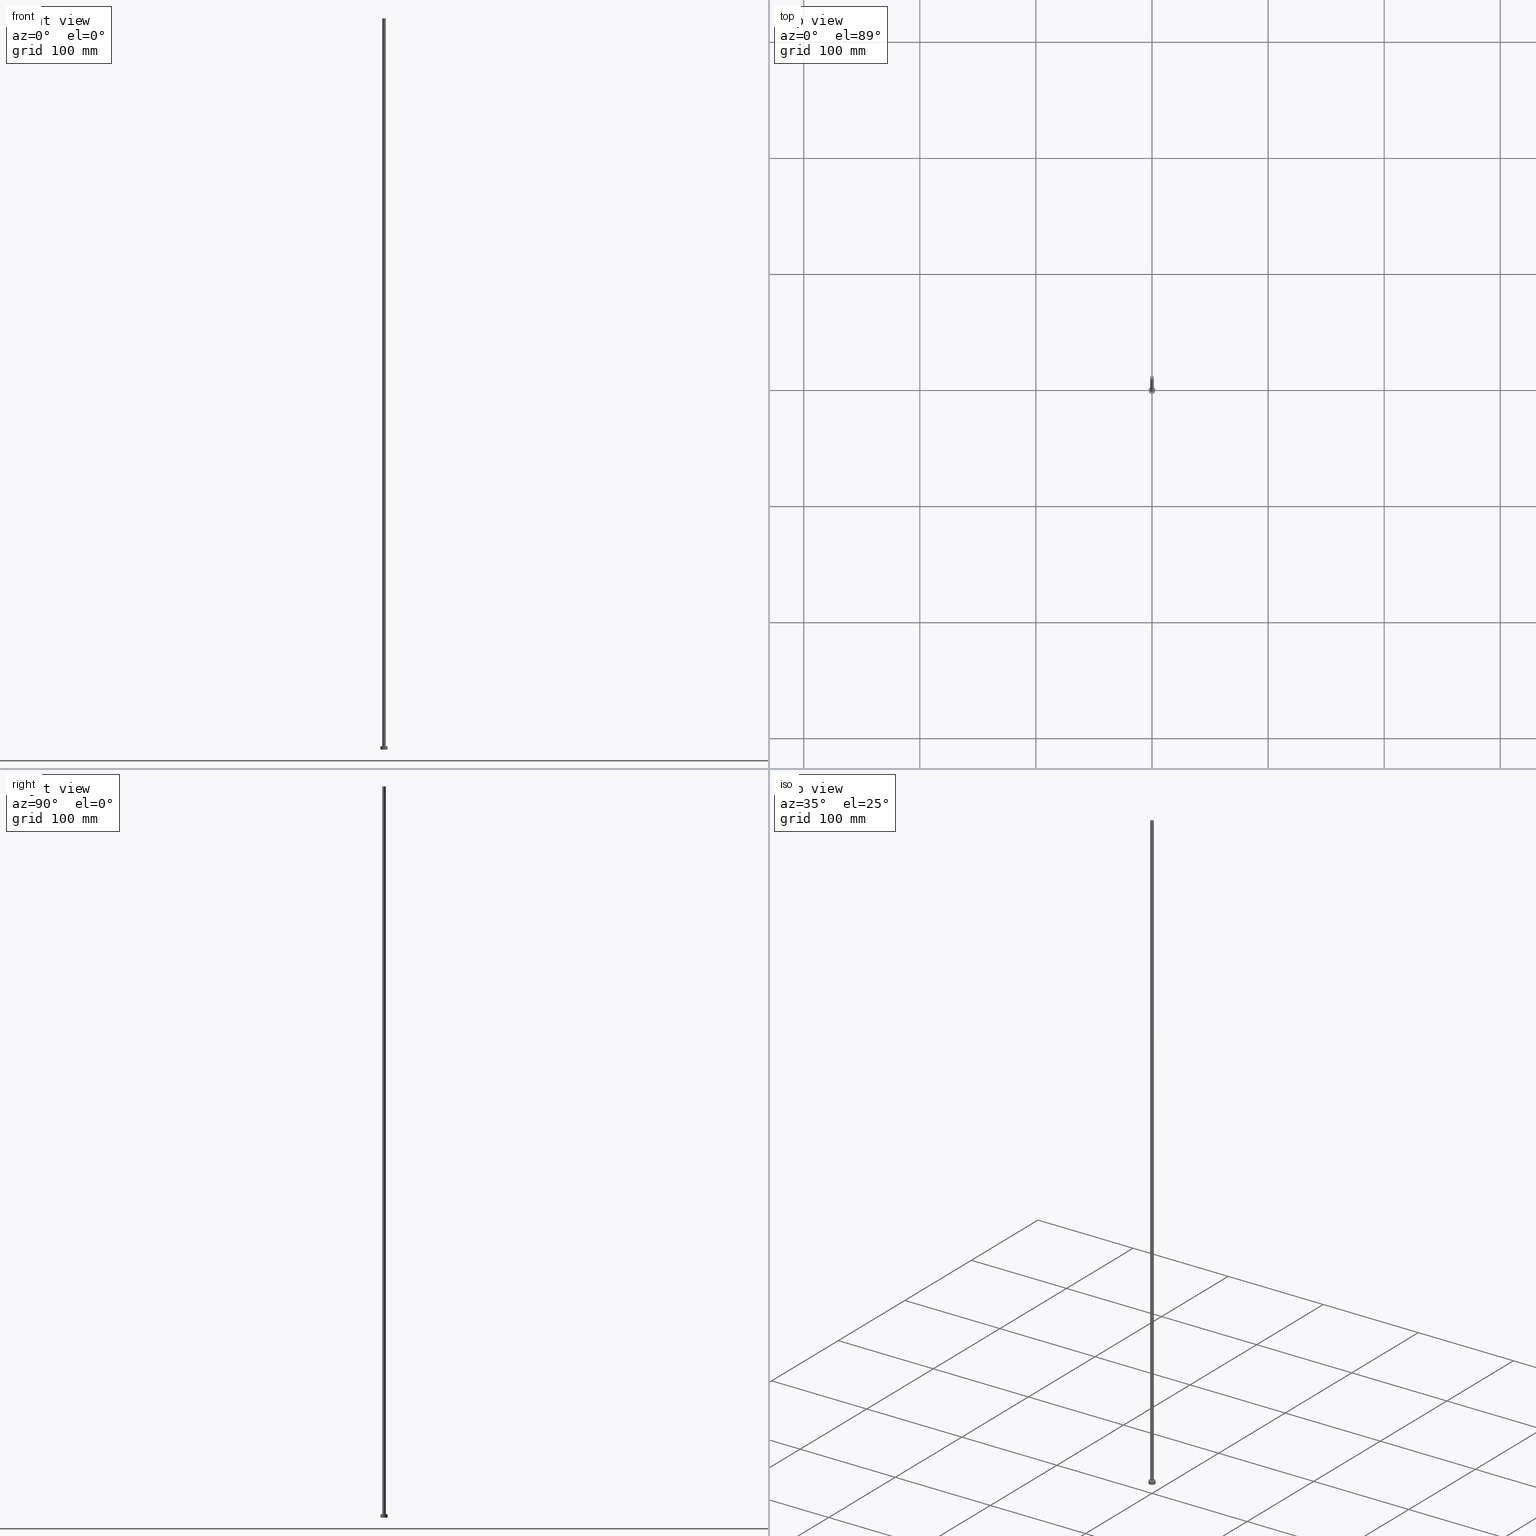
[diagram: canonical four-view strip — front | top / right | iso, engineering-drawing reading convention]
A machine part, canonical four-view strip (front | top / right | iso — engineering-drawing reading convention). The complete STEP part file that produces these views, byte-faithful:
ISO-10303-21;
HEADER;
FILE_DESCRIPTION (( 'STEP AP203' ),
    '1' );
FILE_NAME ('6b50.STEP',
    '2023-02-12T12:45:19',
    ( '' ),
    ( '' ),
    'SwSTEP 2.0',
    'SolidWorks 2019',
    '' );
FILE_SCHEMA (( 'CONFIG_CONTROL_DESIGN' ));
ENDSEC;

DATA;
#1 = VERTEX_POINT ( 'NONE', #97 ) ;
#2 = DIRECTION ( 'NONE',  ( 1.000000000000000000, 0.000000000000000000, 0.000000000000000000 ) ) ;
#3 = APPROVAL_ROLE ( '' ) ;
#4 = ORIENTED_EDGE ( 'NONE', *, *, #189, .T. ) ;
#5 = AXIS2_PLACEMENT_3D ( 'NONE', #126, #129, #105 ) ;
#6 = DIRECTION ( 'NONE',  ( 0.000000000000000000, 0.000000000000000000, 1.000000000000000000 ) ) ;
#7 = DIRECTION ( 'NONE',  ( 1.000000000000000000, 0.000000000000000000, 0.000000000000000000 ) ) ;
#8 = CARTESIAN_POINT ( 'NONE',  ( 0.000000000000000000, 0.000000000000000000, 3.000000000000000000 ) ) ;
#9 = DIRECTION ( 'NONE',  ( 0.000000000000000000, 0.000000000000000000, 1.000000000000000000 ) ) ;
#10 = EDGE_CURVE ( 'NONE', #236, #42, #210, .T. ) ;
#11 = APPROVAL_PERSON_ORGANIZATION ( #134, #18, #3 ) ;
#12 = DIRECTION ( 'NONE',  ( 1.000000000000000000, 0.000000000000000000, 0.000000000000000000 ) ) ;
#13 = PERSON_AND_ORGANIZATION_ROLE ( 'classification_officer' ) ;
#14 = EDGE_CURVE ( 'NONE', #42, #172, #100, .T. ) ;
#15 = CARTESIAN_POINT ( 'NONE',  ( 0.000000000000000000, 0.000000000000000000, 0.000000000000000000 ) ) ;
#16 = VECTOR ( 'NONE', #107, 1000.000000000000000 ) ;
#17 = DATE_AND_TIME ( #186, #88 ) ;
#18 = APPROVAL ( #138, 'NEUR�EN�' ) ;
#19 =( LENGTH_UNIT ( ) NAMED_UNIT ( * ) SI_UNIT ( .MILLI., .METRE. ) );
#20 = DESIGN_CONTEXT ( 'detailed design', #91, 'design' ) ;
#21 = VERTEX_POINT ( 'NONE', #120 ) ;
#22 = CC_DESIGN_DATE_AND_TIME_ASSIGNMENT ( #225, #204, ( #87 ) ) ;
#23 = FACE_BOUND ( 'NONE', #173, .T. ) ;
#24 = CIRCLE ( 'NONE', #38, 1.500000000000000222 ) ;
#25 = VERTEX_POINT ( 'NONE', #121 ) ;
#26 = AXIS2_PLACEMENT_3D ( 'NONE', #90, #247, #68 ) ;
#27 = ORIENTED_EDGE ( 'NONE', *, *, #229, .T. ) ;
#28 = ADVANCED_FACE ( 'NONE', ( #23, #59 ), #163, .T. ) ;
#29 = DIRECTION ( 'NONE',  ( -0.000000000000000000, -0.000000000000000000, -1.000000000000000000 ) ) ;
#30 = CARTESIAN_POINT ( 'NONE',  ( 3.000000000000000444, 3.673940397442060361E-16, 3.000000000000000000 ) ) ;
#31 = DIRECTION ( 'NONE',  ( 1.000000000000000000, 0.000000000000000000, 0.000000000000000000 ) ) ;
#32 = CARTESIAN_POINT ( 'NONE',  ( 0.000000000000000000, 0.000000000000000000, 630.0000000000000000 ) ) ;
#33 = DIRECTION ( 'NONE',  ( 0.000000000000000000, 0.000000000000000000, 1.000000000000000000 ) ) ;
#34 = SECURITY_CLASSIFICATION_LEVEL ( 'unclassified' ) ;
#35 = APPROVAL_DATE_TIME ( #69, #207 ) ;
#36 = PERSON_AND_ORGANIZATION ( #85, #101 ) ;
#37 = CC_DESIGN_PERSON_AND_ORGANIZATION_ASSIGNMENT ( #149, #150, ( #56 ) ) ;
#38 = AXIS2_PLACEMENT_3D ( 'NONE', #106, #201, #7 ) ;
#39 = CC_DESIGN_PERSON_AND_ORGANIZATION_ASSIGNMENT ( #206, #203, ( #253 ) ) ;
#40 = CARTESIAN_POINT ( 'NONE',  ( 3.000000000000000444, 3.673940397442060361E-16, 3.000000000000000000 ) ) ;
#41 = PRODUCT_DEFINITION_SHAPE ( 'NONE', 'NONE',  #113 ) ;
#42 = VERTEX_POINT ( 'NONE', #180 ) ;
#43 = VECTOR ( 'NONE', #29, 1000.000000000000000 ) ;
#44 = ORIENTED_EDGE ( 'NONE', *, *, #10, .T. ) ;
#45 = FACE_OUTER_BOUND ( 'NONE', #76, .T. ) ;
#46 = PLANE ( 'NONE',  #178 ) ;
#47 = DIRECTION ( 'NONE',  ( -0.000000000000000000, -0.000000000000000000, -1.000000000000000000 ) ) ;
#48 = DIRECTION ( 'NONE',  ( -0.000000000000000000, -0.000000000000000000, -1.000000000000000000 ) ) ;
#49 = DIRECTION ( 'NONE',  ( -1.000000000000000000, 0.000000000000000000, 0.000000000000000000 ) ) ;
#50 = APPROVAL_PERSON_ORGANIZATION ( #36, #63, #252 ) ;
#51 = APPROVAL_DATE_TIME ( #17, #63 ) ;
#52 = PERSON_AND_ORGANIZATION_ROLE ( 'creator' ) ;
#53 = DIRECTION ( 'NONE',  ( 1.000000000000000000, 0.000000000000000000, 0.000000000000000000 ) ) ;
#54 = DATE_AND_TIME ( #58, #151 ) ;
#55 = AXIS2_PLACEMENT_3D ( 'NONE', #200, #82, #177 ) ;
#56 = PRODUCT_DEFINITION_FORMATION_WITH_SPECIFIED_SOURCE ( 'LIBOVOLN�', '', #253, .NOT_KNOWN. ) ;
#57 = EDGE_LOOP ( 'NONE', ( #139, #74 ) ) ;
#58 = CALENDAR_DATE ( 2023, 12, 2 ) ;
#59 = FACE_OUTER_BOUND ( 'NONE', #135, .T. ) ;
#60 = EDGE_LOOP ( 'NONE', ( #234, #158, #27, #232 ) ) ;
#61 = DIRECTION ( 'NONE',  ( 1.000000000000000000, 0.000000000000000000, 0.000000000000000000 ) ) ;
#62 = FACE_OUTER_BOUND ( 'NONE', #57, .T. ) ;
#63 = APPROVAL ( #224, 'NEUR�EN�' ) ;
#64 = LINE ( 'NONE', #144, #16 ) ;
#65 = DIRECTION ( 'NONE',  ( 1.000000000000000000, 0.000000000000000000, -0.000000000000000000 ) ) ;
#66 = EDGE_CURVE ( 'NONE', #25, #214, #246, .T. ) ;
#67 = PLANE ( 'NONE',  #55 ) ;
#68 = DIRECTION ( 'NONE',  ( -1.000000000000000000, 0.000000000000000000, 0.000000000000000000 ) ) ;
#69 = DATE_AND_TIME ( #250, #132 ) ;
#70 = DATE_AND_TIME ( #170, #248 ) ;
#71 = EDGE_CURVE ( 'NONE', #236, #21, #131, .T. ) ;
#72 = APPLICATION_CONTEXT ( 'configuration controlled 3d designs of mechanical parts and assemblies' ) ;
#73 = ORIENTED_EDGE ( 'NONE', *, *, #81, .T. ) ;
#74 = ORIENTED_EDGE ( 'NONE', *, *, #198, .T. ) ;
#75 = AXIS2_PLACEMENT_3D ( 'NONE', #240, #6, #12 ) ;
#76 = EDGE_LOOP ( 'NONE', ( #152, #98, #73, #141 ) ) ;
#77 = CC_DESIGN_DATE_AND_TIME_ASSIGNMENT ( #70, #169, ( #113 ) ) ;
#78 = EDGE_LOOP ( 'NONE', ( #231, #119, #4, #190 ) ) ;
#79 = DIRECTION ( 'NONE',  ( 0.000000000000000000, 0.000000000000000000, 1.000000000000000000 ) ) ;
#80 = AXIS2_PLACEMENT_3D ( 'NONE', #15, #188, #53 ) ;
#81 = EDGE_CURVE ( 'NONE', #214, #103, #24, .T. ) ;
#82 = DIRECTION ( 'NONE',  ( 0.000000000000000000, 0.000000000000000000, 1.000000000000000000 ) ) ;
#83 = CYLINDRICAL_SURFACE ( 'NONE', #162, 3.000000000000000444 ) ;
#84 = CIRCLE ( 'NONE', #122, 3.000000000000000444 ) ;
#85 = PERSON ( 'NEUR�EN�', 'NEUR�EN�', 'NEUR�EN�', ('NEUR�EN�'), ('NEUR�EN�'), ('NEUR�EN�') ) ;
#86 = FACE_OUTER_BOUND ( 'NONE', #78, .T. ) ;
#87 = SECURITY_CLASSIFICATION ( '', '', #34 ) ;
#88 = LOCAL_TIME ( 13, 45, 19.00000000000000000, #202 ) ;
#89 = CARTESIAN_POINT ( 'NONE',  ( -1.500000000000000222, 0.000000000000000000, 630.0000000000000000 ) ) ;
#90 = CARTESIAN_POINT ( 'NONE',  ( 0.000000000000000000, 0.000000000000000000, 630.0000000000000000 ) ) ;
#91 = APPLICATION_CONTEXT ( 'configuration controlled 3d designs of mechanical parts and assemblies' ) ;
#92 = PERSON_AND_ORGANIZATION_ROLE ( 'design_supplier' ) ;
#93 = APPROVAL_ROLE ( '' ) ;
#94 = PERSON_AND_ORGANIZATION ( #85, #101 ) ;
#95 = UNCERTAINTY_MEASURE_WITH_UNIT (LENGTH_MEASURE( 1.000000000000000082E-05 ), #19, 'distance_accuracy_value', 'NONE');
#96 = APPROVAL_STATUS ( 'not_yet_approved' ) ;
#97 = CARTESIAN_POINT ( 'NONE',  ( -1.500000000000000222, 0.000000000000000000, 630.0000000000000000 ) ) ;
#98 = ORIENTED_EDGE ( 'NONE', *, *, #66, .T. ) ;
#99 = ORIENTED_EDGE ( 'NONE', *, *, #14, .F. ) ;
#100 = CIRCLE ( 'NONE', #108, 3.000000000000000444 ) ;
#101 = ORGANIZATION ( 'NEUR�EN�', 'NEUR�EN�', '' ) ;
#102 = ADVANCED_FACE ( 'NONE', ( #86 ), #161, .T. ) ;
#103 = VERTEX_POINT ( 'NONE', #147 ) ;
#104 = CARTESIAN_POINT ( 'NONE',  ( 0.000000000000000000, 0.000000000000000000, 630.0000000000000000 ) ) ;
#105 = DIRECTION ( 'NONE',  ( 1.000000000000000000, 0.000000000000000000, -0.000000000000000000 ) ) ;
#106 = CARTESIAN_POINT ( 'NONE',  ( 0.000000000000000000, 0.000000000000000000, 3.000000000000000000 ) ) ;
#107 = DIRECTION ( 'NONE',  ( -0.000000000000000000, -0.000000000000000000, -1.000000000000000000 ) ) ;
#108 = AXIS2_PLACEMENT_3D ( 'NONE', #175, #171, #2 ) ;
#109 = DIRECTION ( 'NONE',  ( 1.000000000000000000, 0.000000000000000000, 0.000000000000000000 ) ) ;
#110 = CC_DESIGN_APPROVAL ( #18, ( #87 ) ) ;
#111 = PERSON_AND_ORGANIZATION ( #85, #101 ) ;
#112 = COORDINATED_UNIVERSAL_TIME_OFFSET ( 1, 0, .AHEAD. ) ;
#113 = PRODUCT_DEFINITION ( 'NEZN�M�', '', #56, #20 ) ;
#114 =( NAMED_UNIT ( * ) SI_UNIT ( $, .STERADIAN. ) SOLID_ANGLE_UNIT ( ) );
#115 = COORDINATED_UNIVERSAL_TIME_OFFSET ( 1, 0, .AHEAD. ) ;
#116 = ADVANCED_FACE ( 'NONE', ( #62 ), #46, .T. ) ;
#117 = CLOSED_SHELL ( 'NONE', ( #153, #136, #102, #28, #145, #238, #116 ) ) ;
#118 = AXIS2_PLACEMENT_3D ( 'NONE', #104, #79, #142 ) ;
#119 = ORIENTED_EDGE ( 'NONE', *, *, #157, .F. ) ;
#120 = CARTESIAN_POINT ( 'NONE',  ( -3.000000000000000444, 0.000000000000000000, 3.000000000000000000 ) ) ;
#121 = CARTESIAN_POINT ( 'NONE',  ( 1.500000000000000222, 1.836970198721030181E-16, 630.0000000000000000 ) ) ;
#122 = AXIS2_PLACEMENT_3D ( 'NONE', #239, #159, #61 ) ;
#123 = ORIENTED_EDGE ( 'NONE', *, *, #157, .T. ) ;
#124 = CC_DESIGN_PERSON_AND_ORGANIZATION_ASSIGNMENT ( #111, #52, ( #113 ) ) ;
#125 = DIRECTION ( 'NONE',  ( 0.000000000000000000, 0.000000000000000000, 1.000000000000000000 ) ) ;
#126 = CARTESIAN_POINT ( 'NONE',  ( 0.000000000000000000, 0.000000000000000000, 3.000000000000000000 ) ) ;
#127 = CIRCLE ( 'NONE', #75, 1.500000000000000222 ) ;
#128 = CARTESIAN_POINT ( 'NONE',  ( -3.000000000000000444, 0.000000000000000000, 0.000000000000000000 ) ) ;
#129 = DIRECTION ( 'NONE',  ( 0.000000000000000000, 0.000000000000000000, 1.000000000000000000 ) ) ;
#130 = APPLICATION_PROTOCOL_DEFINITION ( 'international standard', 'config_control_design', 1994, #91 ) ;
#131 = CIRCLE ( 'NONE', #183, 3.000000000000000444 ) ;
#132 = LOCAL_TIME ( 13, 45, 19.00000000000000000, #115 ) ;
#133 = MECHANICAL_CONTEXT ( 'NONE', #72, 'mechanical' ) ;
#134 = PERSON_AND_ORGANIZATION ( #85, #101 ) ;
#135 = EDGE_LOOP ( 'NONE', ( #123, #237 ) ) ;
#136 = ADVANCED_FACE ( 'NONE', ( #181 ), #83, .T. ) ;
#137 = EDGE_LOOP ( 'NONE', ( #255, #99 ) ) ;
#138 = APPROVAL_STATUS ( 'not_yet_approved' ) ;
#139 = ORIENTED_EDGE ( 'NONE', *, *, #235, .T. ) ;
#140 = PRODUCT_RELATED_PRODUCT_CATEGORY ( 'detail', '', ( #253 ) ) ;
#141 = ORIENTED_EDGE ( 'NONE', *, *, #229, .F. ) ;
#142 = DIRECTION ( 'NONE',  ( 1.000000000000000000, 0.000000000000000000, 0.000000000000000000 ) ) ;
#143 = LINE ( 'NONE', #89, #43 ) ;
#144 = CARTESIAN_POINT ( 'NONE',  ( -3.000000000000000444, 0.000000000000000000, 3.000000000000000000 ) ) ;
#145 = ADVANCED_FACE ( 'NONE', ( #221 ), #67, .F. ) ;
#146 = CARTESIAN_POINT ( 'NONE',  ( 0.000000000000000000, 0.000000000000000000, 3.000000000000000000 ) ) ;
#147 = CARTESIAN_POINT ( 'NONE',  ( -1.500000000000000222, 0.000000000000000000, 3.000000000000000000 ) ) ;
#148 = CIRCLE ( 'NONE', #233, 1.500000000000000222 ) ;
#149 = PERSON_AND_ORGANIZATION ( #85, #101 ) ;
#150 = PERSON_AND_ORGANIZATION_ROLE ( 'creator' ) ;
#151 = LOCAL_TIME ( 13, 45, 19.00000000000000000, #213 ) ;
#152 = ORIENTED_EDGE ( 'NONE', *, *, #198, .F. ) ;
#153 = ADVANCED_FACE ( 'NONE', ( #45 ), #160, .T. ) ;
#154 =( GEOMETRIC_REPRESENTATION_CONTEXT ( 3 ) GLOBAL_UNCERTAINTY_ASSIGNED_CONTEXT ( ( #95 ) ) GLOBAL_UNIT_ASSIGNED_CONTEXT ( ( #19, #230, #114 ) ) REPRESENTATION_CONTEXT ( 'NONE', 'WORKASPACE' ) );
#155 = ADVANCED_BREP_SHAPE_REPRESENTATION ( '6b50', ( #251, #80 ), #154 ) ;
#156 = EDGE_LOOP ( 'NONE', ( #176, #44, #208, #211 ) ) ;
#157 = EDGE_CURVE ( 'NONE', #21, #236, #84, .T. ) ;
#158 = ORIENTED_EDGE ( 'NONE', *, *, #235, .F. ) ;
#159 = DIRECTION ( 'NONE',  ( 0.000000000000000000, 0.000000000000000000, 1.000000000000000000 ) ) ;
#160 = CYLINDRICAL_SURFACE ( 'NONE', #226, 1.500000000000000222 ) ;
#161 = CYLINDRICAL_SURFACE ( 'NONE', #197, 3.000000000000000444 ) ;
#162 = AXIS2_PLACEMENT_3D ( 'NONE', #146, #48, #49 ) ;
#163 = PLANE ( 'NONE',  #5 ) ;
#164 = AXIS2_PLACEMENT_3D ( 'NONE', #244, #33, #109 ) ;
#165 = CARTESIAN_POINT ( 'NONE',  ( 0.000000000000000000, 0.000000000000000000, 630.0000000000000000 ) ) ;
#166 = CYLINDRICAL_SURFACE ( 'NONE', #26, 1.500000000000000222 ) ;
#167 = COORDINATED_UNIVERSAL_TIME_OFFSET ( 1, 0, .AHEAD. ) ;
#168 = APPLICATION_PROTOCOL_DEFINITION ( 'international standard', 'config_control_design', 1994, #72 ) ;
#169 = DATE_TIME_ROLE ( 'creation_date' ) ;
#170 = CALENDAR_DATE ( 2023, 12, 2 ) ;
#171 = DIRECTION ( 'NONE',  ( 0.000000000000000000, 0.000000000000000000, 1.000000000000000000 ) ) ;
#172 = VERTEX_POINT ( 'NONE', #128 ) ;
#173 = EDGE_LOOP ( 'NONE', ( #216, #194 ) ) ;
#174 = SHAPE_DEFINITION_REPRESENTATION ( #41, #155 ) ;
#175 = CARTESIAN_POINT ( 'NONE',  ( 0.000000000000000000, 0.000000000000000000, 0.000000000000000000 ) ) ;
#176 = ORIENTED_EDGE ( 'NONE', *, *, #71, .F. ) ;
#177 = DIRECTION ( 'NONE',  ( 1.000000000000000000, 0.000000000000000000, -0.000000000000000000 ) ) ;
#178 = AXIS2_PLACEMENT_3D ( 'NONE', #165, #241, #65 ) ;
#179 = CC_DESIGN_SECURITY_CLASSIFICATION ( #87, ( #56 ) ) ;
#180 = CARTESIAN_POINT ( 'NONE',  ( 3.000000000000000444, 3.673940397442060361E-16, 0.000000000000000000 ) ) ;
#181 = FACE_OUTER_BOUND ( 'NONE', #156, .T. ) ;
#182 = CARTESIAN_POINT ( 'NONE',  ( 0.000000000000000000, 0.000000000000000000, 630.0000000000000000 ) ) ;
#183 = AXIS2_PLACEMENT_3D ( 'NONE', #8, #125, #31 ) ;
#184 = CARTESIAN_POINT ( 'NONE',  ( 1.500000000000000222, 1.836970198721030181E-16, 3.000000000000000000 ) ) ;
#185 = PERSON_AND_ORGANIZATION ( #85, #101 ) ;
#186 = CALENDAR_DATE ( 2023, 12, 2 ) ;
#187 = PERSON_AND_ORGANIZATION ( #85, #101 ) ;
#188 = DIRECTION ( 'NONE',  ( 0.000000000000000000, 0.000000000000000000, 1.000000000000000000 ) ) ;
#189 = EDGE_CURVE ( 'NONE', #21, #172, #64, .T. ) ;
#190 = ORIENTED_EDGE ( 'NONE', *, *, #212, .T. ) ;
#191 = CC_DESIGN_APPROVAL ( #63, ( #56 ) ) ;
#192 = CC_DESIGN_APPROVAL ( #207, ( #113 ) ) ;
#193 = CC_DESIGN_PERSON_AND_ORGANIZATION_ASSIGNMENT ( #187, #13, ( #87 ) ) ;
#194 = ORIENTED_EDGE ( 'NONE', *, *, #81, .F. ) ;
#195 = DIRECTION ( 'NONE',  ( 1.000000000000000000, 0.000000000000000000, 0.000000000000000000 ) ) ;
#196 = DIRECTION ( 'NONE',  ( -0.000000000000000000, -0.000000000000000000, -1.000000000000000000 ) ) ;
#197 = AXIS2_PLACEMENT_3D ( 'NONE', #219, #196, #222 ) ;
#198 = EDGE_CURVE ( 'NONE', #25, #1, #148, .T. ) ;
#199 = CARTESIAN_POINT ( 'NONE',  ( 1.500000000000000222, 1.836970198721030181E-16, 630.0000000000000000 ) ) ;
#200 = CARTESIAN_POINT ( 'NONE',  ( 0.000000000000000000, 0.000000000000000000, 0.000000000000000000 ) ) ;
#201 = DIRECTION ( 'NONE',  ( 0.000000000000000000, 0.000000000000000000, 1.000000000000000000 ) ) ;
#202 = COORDINATED_UNIVERSAL_TIME_OFFSET ( 1, 0, .AHEAD. ) ;
#203 = PERSON_AND_ORGANIZATION_ROLE ( 'design_owner' ) ;
#204 = DATE_TIME_ROLE ( 'classification_date' ) ;
#205 = VECTOR ( 'NONE', #254, 1000.000000000000000 ) ;
#206 = PERSON_AND_ORGANIZATION ( #85, #101 ) ;
#207 = APPROVAL ( #96, 'NEUR�EN�' ) ;
#208 = ORIENTED_EDGE ( 'NONE', *, *, #14, .T. ) ;
#209 = APPROVAL_DATE_TIME ( #54, #18 ) ;
#210 = LINE ( 'NONE', #40, #205 ) ;
#211 = ORIENTED_EDGE ( 'NONE', *, *, #189, .F. ) ;
#212 = EDGE_CURVE ( 'NONE', #172, #42, #215, .T. ) ;
#213 = COORDINATED_UNIVERSAL_TIME_OFFSET ( 1, 0, .AHEAD. ) ;
#214 = VERTEX_POINT ( 'NONE', #184 ) ;
#215 = CIRCLE ( 'NONE', #164, 3.000000000000000444 ) ;
#216 = ORIENTED_EDGE ( 'NONE', *, *, #218, .F. ) ;
#217 = DIRECTION ( 'NONE',  ( -0.000000000000000000, -0.000000000000000000, -1.000000000000000000 ) ) ;
#218 = EDGE_CURVE ( 'NONE', #103, #214, #127, .T. ) ;
#219 = CARTESIAN_POINT ( 'NONE',  ( 0.000000000000000000, 0.000000000000000000, 3.000000000000000000 ) ) ;
#220 = CIRCLE ( 'NONE', #118, 1.500000000000000222 ) ;
#221 = FACE_OUTER_BOUND ( 'NONE', #137, .T. ) ;
#222 = DIRECTION ( 'NONE',  ( -1.000000000000000000, 0.000000000000000000, 0.000000000000000000 ) ) ;
#223 = DIRECTION ( 'NONE',  ( -1.000000000000000000, 0.000000000000000000, 0.000000000000000000 ) ) ;
#224 = APPROVAL_STATUS ( 'not_yet_approved' ) ;
#225 = DATE_AND_TIME ( #249, #228 ) ;
#226 = AXIS2_PLACEMENT_3D ( 'NONE', #32, #47, #223 ) ;
#227 = FACE_OUTER_BOUND ( 'NONE', #60, .T. ) ;
#228 = LOCAL_TIME ( 13, 45, 19.00000000000000000, #167 ) ;
#229 = EDGE_CURVE ( 'NONE', #1, #103, #143, .T. ) ;
#230 =( NAMED_UNIT ( * ) PLANE_ANGLE_UNIT ( ) SI_UNIT ( $, .RADIAN. ) );
#231 = ORIENTED_EDGE ( 'NONE', *, *, #10, .F. ) ;
#232 = ORIENTED_EDGE ( 'NONE', *, *, #218, .T. ) ;
#233 = AXIS2_PLACEMENT_3D ( 'NONE', #182, #9, #195 ) ;
#234 = ORIENTED_EDGE ( 'NONE', *, *, #66, .F. ) ;
#235 = EDGE_CURVE ( 'NONE', #1, #25, #220, .T. ) ;
#236 = VERTEX_POINT ( 'NONE', #30 ) ;
#237 = ORIENTED_EDGE ( 'NONE', *, *, #71, .T. ) ;
#238 = ADVANCED_FACE ( 'NONE', ( #227 ), #166, .T. ) ;
#239 = CARTESIAN_POINT ( 'NONE',  ( 0.000000000000000000, 0.000000000000000000, 3.000000000000000000 ) ) ;
#240 = CARTESIAN_POINT ( 'NONE',  ( 0.000000000000000000, 0.000000000000000000, 3.000000000000000000 ) ) ;
#241 = DIRECTION ( 'NONE',  ( 0.000000000000000000, 0.000000000000000000, 1.000000000000000000 ) ) ;
#242 = VECTOR ( 'NONE', #217, 1000.000000000000000 ) ;
#243 = APPROVAL_PERSON_ORGANIZATION ( #185, #207, #93 ) ;
#244 = CARTESIAN_POINT ( 'NONE',  ( 0.000000000000000000, 0.000000000000000000, 0.000000000000000000 ) ) ;
#245 = CC_DESIGN_PERSON_AND_ORGANIZATION_ASSIGNMENT ( #94, #92, ( #56 ) ) ;
#246 = LINE ( 'NONE', #199, #242 ) ;
#247 = DIRECTION ( 'NONE',  ( -0.000000000000000000, -0.000000000000000000, -1.000000000000000000 ) ) ;
#248 = LOCAL_TIME ( 13, 45, 19.00000000000000000, #112 ) ;
#249 = CALENDAR_DATE ( 2023, 12, 2 ) ;
#250 = CALENDAR_DATE ( 2023, 12, 2 ) ;
#251 = MANIFOLD_SOLID_BREP ( 'P�idat vysunut�m3', #117 ) ;
#252 = APPROVAL_ROLE ( '' ) ;
#253 = PRODUCT ( '6b50', '6b50', '', ( #133 ) ) ;
#254 = DIRECTION ( 'NONE',  ( -0.000000000000000000, -0.000000000000000000, -1.000000000000000000 ) ) ;
#255 = ORIENTED_EDGE ( 'NONE', *, *, #212, .F. ) ;
ENDSEC;
END-ISO-10303-21;
